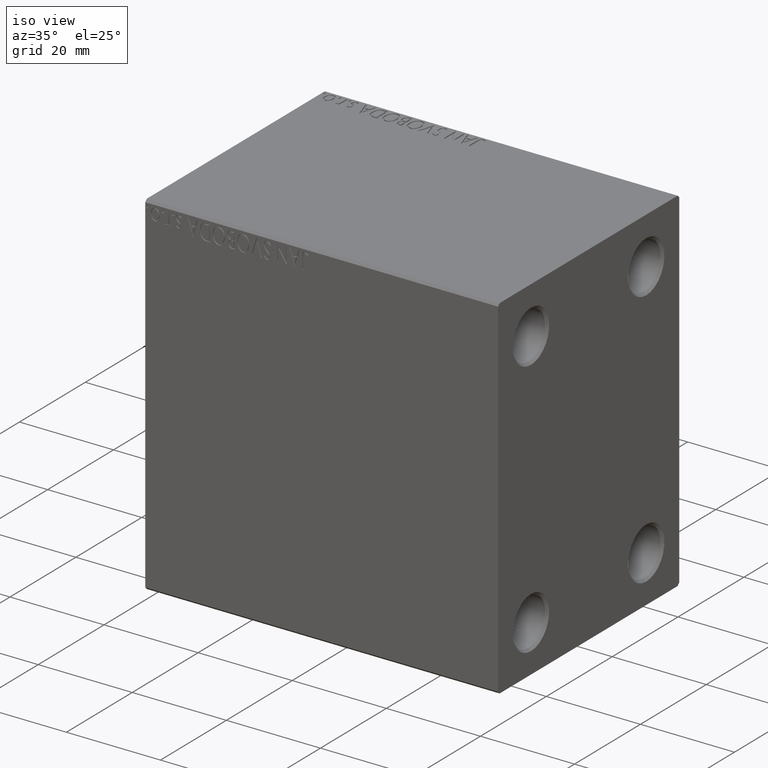
[diagram: clean part render]
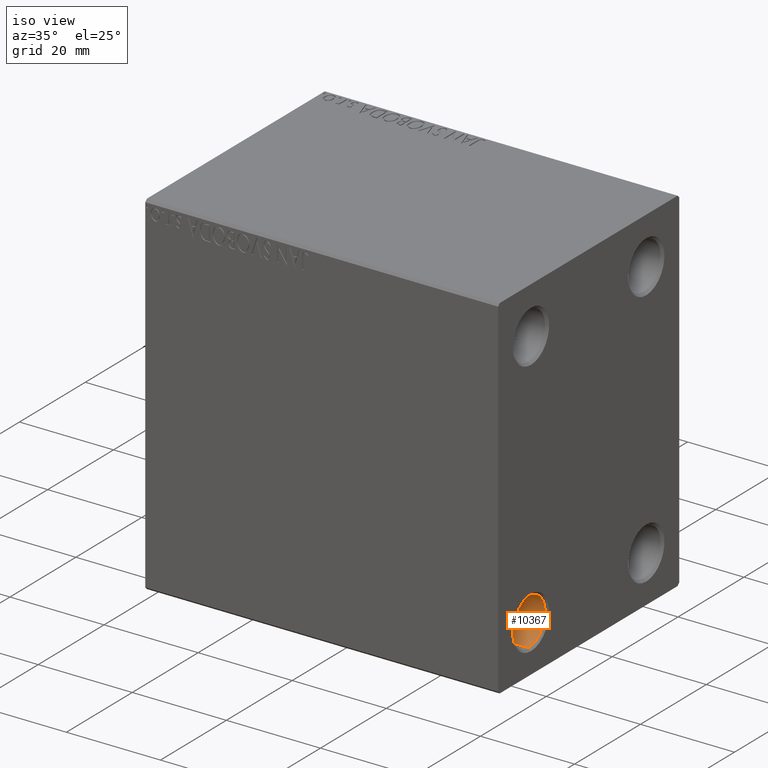
[diagram: same view with one face highlighted and labeled with its STEP entity id]
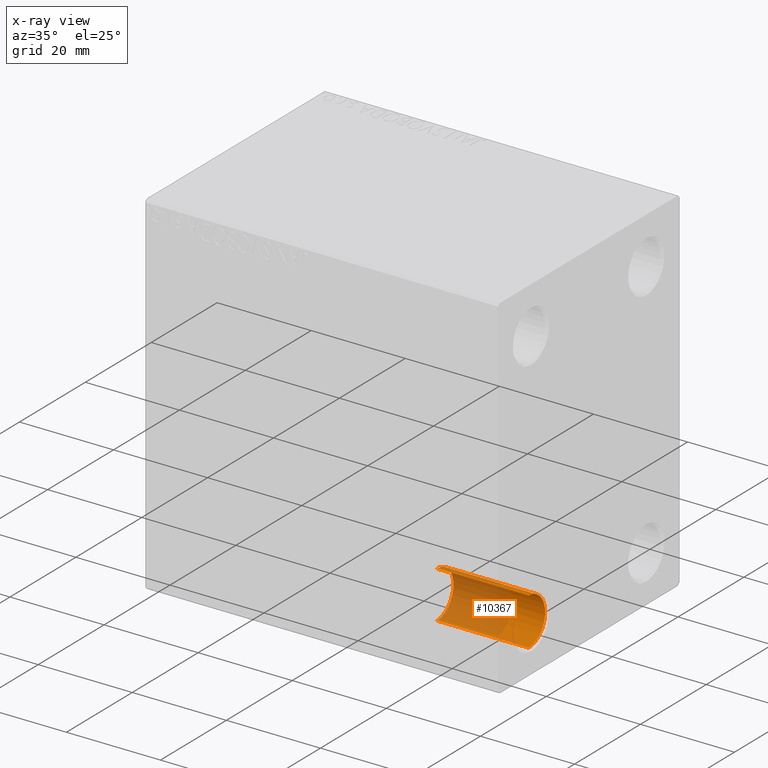
[diagram: x-ray of the same camera — body ghosted, the highlighted face saturated]
A machine part, iso view. The second image highlights one B-rep face of the part: STEP entity #10367.
The next image is the same camera in x-ray: the body ghosted, the highlighted face saturated — about 59% of this face is hidden behind the body in this view.
In plain terms, the highlighted cylindrical surface (edge-blend (fillet) strip) has radius 5 mm, axis along (1, 0, 0).
Its self-contained STEP definition (entity closure, byte-faithful):
#711 = EDGE_LOOP ( 'NONE', ( #43329, #26667, #31942, #17408 ) ) ;
#874 = VERTEX_POINT ( 'NONE', #39062 ) ;
#2992 = CARTESIAN_POINT ( 'NONE',  ( 74.49999999999997158, -17.50000000000000000, -27.49999999999999645 ) ) ;
#5299 = DIRECTION ( 'NONE',  ( 0.000000000000000000, 0.000000000000000000, 1.000000000000000000 ) ) ;
#5852 = CARTESIAN_POINT ( 'NONE',  ( 54.99999999999999289, -17.50000000000000000, -22.50000000000000000 ) ) ;
#6871 = CIRCLE ( 'NONE', #24755, 4.999999999999997335 ) ;
#7764 = CYLINDRICAL_SURFACE ( 'NONE', #8262, 4.999999999999997335 ) ;
#8262 = AXIS2_PLACEMENT_3D ( 'NONE', #28182, #18531, #24824 ) ;
#8430 = DIRECTION ( 'NONE',  ( -1.000000000000000000, 0.000000000000000000, 0.000000000000000000 ) ) ;
#8969 = EDGE_CURVE ( 'NONE', #12559, #21502, #10627, .T. ) ;
#9755 = EDGE_CURVE ( 'NONE', #21502, #874, #6871, .T. ) ;
#10110 = EDGE_CURVE ( 'NONE', #24631, #874, #11180, .T. ) ;
#10367 = ADVANCED_FACE ( 'NONE', ( #24593 ), #7764, .F. ) ;
#10627 = LINE ( 'NONE', #41158, #37639 ) ;
#10947 = CARTESIAN_POINT ( 'NONE',  ( 75.00000000000000000, -17.50000000000000000, -32.49999999999999289 ) ) ;
#11065 = DIRECTION ( 'NONE',  ( 1.000000000000000000, -0.000000000000000000, -0.000000000000000000 ) ) ;
#11180 = LINE ( 'NONE', #10947, #32638 ) ;
#12559 = VERTEX_POINT ( 'NONE', #5852 ) ;
#17408 = ORIENTED_EDGE ( 'NONE', *, *, #8969, .F. ) ;
#18531 = DIRECTION ( 'NONE',  ( 1.000000000000000000, -0.000000000000000000, -0.000000000000000000 ) ) ;
#18734 = CARTESIAN_POINT ( 'NONE',  ( 54.99999999999999289, -17.50000000000000000, -27.49999999999999645 ) ) ;
#19557 = DIRECTION ( 'NONE',  ( -1.000000000000000000, 0.000000000000000000, 0.000000000000000000 ) ) ;
#21396 = EDGE_CURVE ( 'NONE', #12559, #24631, #35784, .T. ) ;
#21502 = VERTEX_POINT ( 'NONE', #33089 ) ;
#24593 = FACE_OUTER_BOUND ( 'NONE', #711, .T. ) ;
#24631 = VERTEX_POINT ( 'NONE', #26683 ) ;
#24755 = AXIS2_PLACEMENT_3D ( 'NONE', #2992, #19557, #32824 ) ;
#24824 = DIRECTION ( 'NONE',  ( 0.000000000000000000, 0.000000000000000000, 1.000000000000000000 ) ) ;
#26667 = ORIENTED_EDGE ( 'NONE', *, *, #10110, .T. ) ;
#26683 = CARTESIAN_POINT ( 'NONE',  ( 54.99999999999999289, -17.50000000000000000, -32.49999999999999289 ) ) ;
#28182 = CARTESIAN_POINT ( 'NONE',  ( 75.00000000000000000, -17.50000000000000000, -27.49999999999999645 ) ) ;
#28714 = AXIS2_PLACEMENT_3D ( 'NONE', #18734, #8430, #5299 ) ;
#31942 = ORIENTED_EDGE ( 'NONE', *, *, #9755, .F. ) ;
#32638 = VECTOR ( 'NONE', #35402, 1000.000000000000000 ) ;
#32824 = DIRECTION ( 'NONE',  ( 0.000000000000000000, 0.000000000000000000, -1.000000000000000000 ) ) ;
#33089 = CARTESIAN_POINT ( 'NONE',  ( 74.49999999999997158, -17.50000000000000000, -22.50000000000000000 ) ) ;
#35402 = DIRECTION ( 'NONE',  ( 1.000000000000000000, -0.000000000000000000, -0.000000000000000000 ) ) ;
#35784 = CIRCLE ( 'NONE', #28714, 4.999999999999997335 ) ;
#37639 = VECTOR ( 'NONE', #11065, 1000.000000000000000 ) ;
#39062 = CARTESIAN_POINT ( 'NONE',  ( 74.49999999999997158, -17.50000000000000000, -32.49999999999999289 ) ) ;
#41158 = CARTESIAN_POINT ( 'NONE',  ( 75.00000000000000000, -17.50000000000000000, -22.50000000000000000 ) ) ;
#43329 = ORIENTED_EDGE ( 'NONE', *, *, #21396, .T. ) ;